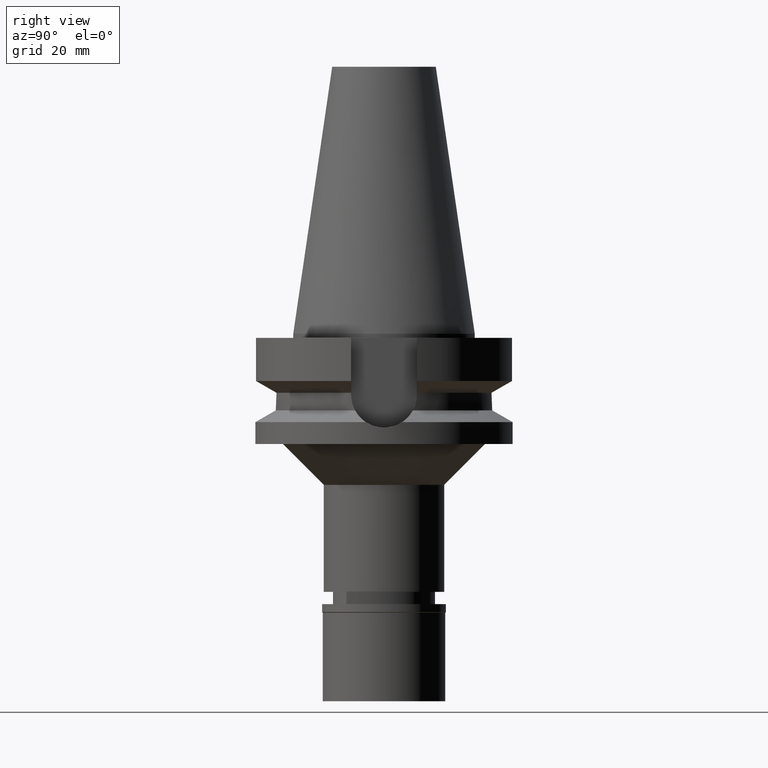
[diagram: clean part render]
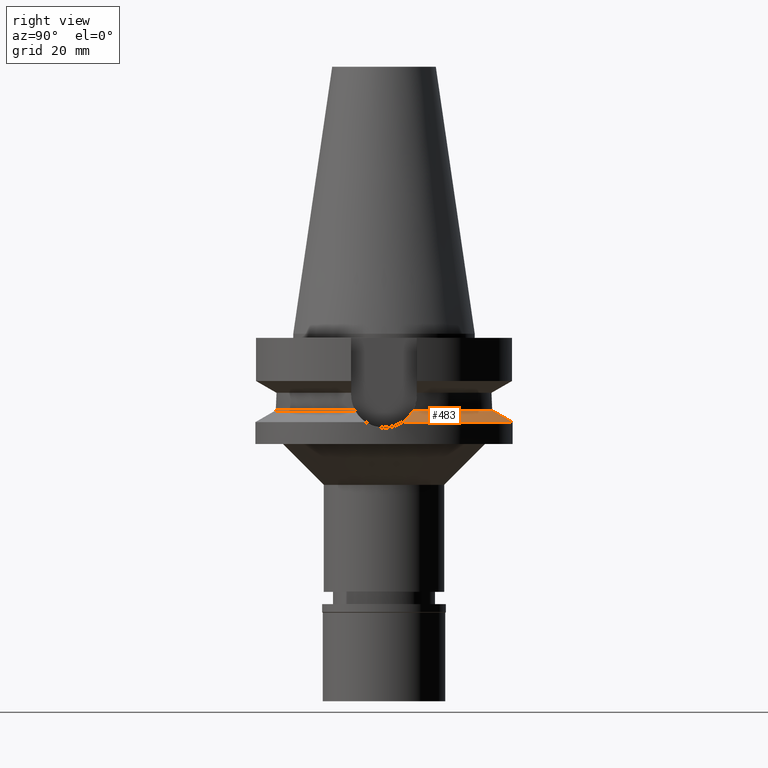
[diagram: same view with one face highlighted and labeled with its STEP entity id]
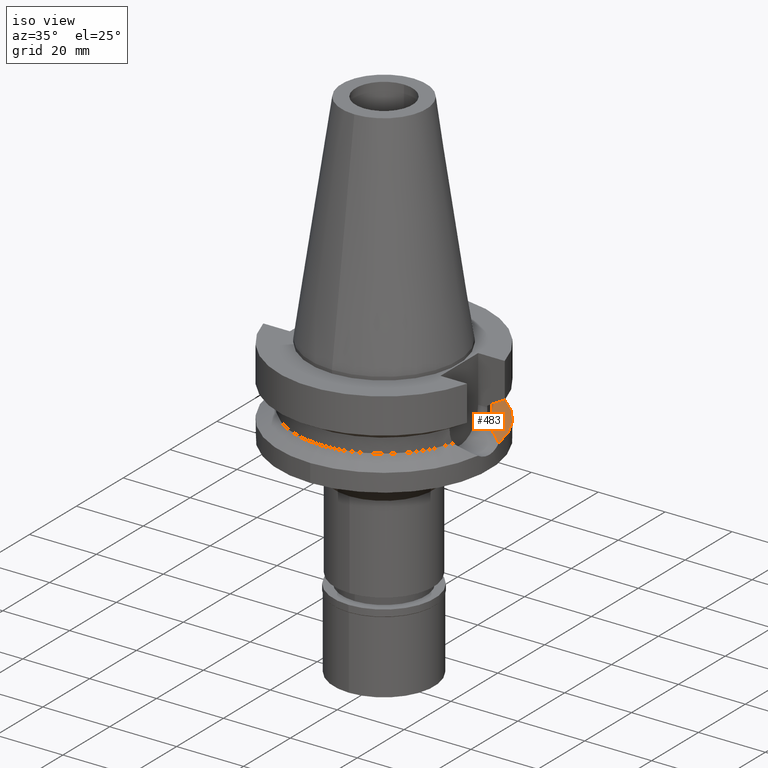
[diagram: same view with one face highlighted and labeled with its STEP entity id]
A machine part, right view. The second image highlights one B-rep face of the part: STEP entity #483.
A second angle (iso view) of the same face is appended — the face is thin or edge-on in the first view.
In plain terms, the highlighted conical surface has half-angle 60 deg.
Its self-contained STEP definition (entity closure, byte-faithful):
#23 = CARTESIAN_POINT ( 'NONE',  ( 27.72863746108189176, 6.369106856178554210, -19.87330729786033245 ) ) ;
#128 = VERTEX_POINT ( 'NONE', #2100 ) ;
#145 = ORIENTED_EDGE ( 'NONE', *, *, #1324, .F. ) ;
#173 = DIRECTION ( 'NONE',  ( 0.0000000000000000000, -1.000000000000000000, 0.0000000000000000000 ) ) ;
#212 = CARTESIAN_POINT ( 'NONE',  ( -27.56832155853851418, 6.431360717030734087, -19.79188796920927373 ) ) ;
#256 = CARTESIAN_POINT ( 'NONE',  ( -27.99705806420217158, 6.260502183034696522, -20.01120139630721795 ) ) ;
#268 = CARTESIAN_POINT ( 'NONE',  ( -27.80261133186566980, 6.340080601829415130, -19.91176336261907664 ) ) ;
#316 = DIRECTION ( 'NONE',  ( 0.0000000000000000000, 0.0000000000000000000, -1.000000000000000000 ) ) ;
#338 = CARTESIAN_POINT ( 'NONE',  ( 27.31939488995484311, 6.525799713995021456, -19.66417160455558388 ) ) ;
#356 = CARTESIAN_POINT ( 'NONE',  ( 27.46991860558352982, 6.469026477808792031, -19.74109902299841579 ) ) ;
#384 = EDGE_CURVE ( 'NONE', #613, #579, #3092, .T. ) ;
#398 = CARTESIAN_POINT ( 'NONE',  ( -25.53175183775000079, 7.097862220092999941, -18.74774300138999905 ) ) ;
#414 = DIRECTION ( 'NONE',  ( 0.0000000000000000000, 0.0000000000000000000, -1.000000000000000000 ) ) ;
#449 = EDGE_LOOP ( 'NONE', ( #2688, #780, #145, #1417, #2636 ) ) ;
#483 = ADVANCED_FACE ( 'NONE', ( #1851 ), #619, .T. ) ;
#510 = CIRCLE ( 'NONE', #1472, 31.50000000000001421 ) ;
#526 = CARTESIAN_POINT ( 'NONE',  ( 27.64221706651611399, 6.403055377995744202, -19.82913948399951920 ) ) ;
#579 = VERTEX_POINT ( 'NONE', #398 ) ;
#613 = VERTEX_POINT ( 'NONE', #2121 ) ;
#619 = CONICAL_SURFACE ( 'NONE', #1780, 29.00000000000000000, 1.047197551196400456 ) ;
#627 = CARTESIAN_POINT ( 'NONE',  ( 28.07127798486517989, 6.232175886262699471, -20.04844231467346560 ) ) ;
#635 = CARTESIAN_POINT ( 'NONE',  ( 0.0000000000000000000, 0.0000000000000000000, -18.74774300138999905 ) ) ;
#647 = DIRECTION ( 'NONE',  ( 0.0000000000000000000, 1.000000000000000000, 0.0000000000000000000 ) ) ;
#651 = CARTESIAN_POINT ( 'NONE',  ( 25.53175183775000079, 7.097862220092999941, -18.74774300138999905 ) ) ;
#685 = CARTESIAN_POINT ( 'NONE',  ( 0.0000000000000000000, 0.0000000000000000000, -21.63449434733000132 ) ) ;
#704 = CARTESIAN_POINT ( 'NONE',  ( -27.46632154445573804, 6.470115555465794088, -19.73968472472500224 ) ) ;
#767 = CARTESIAN_POINT ( 'NONE',  ( -27.36246532912323204, 6.509127274254973727, -19.68652459502293794 ) ) ;
#780 = ORIENTED_EDGE ( 'NONE', *, *, #782, .F. ) ;
#782 = EDGE_CURVE ( 'NONE', #2003, #613, #1656, .T. ) ;
#911 = CIRCLE ( 'NONE', #1211, 31.50000000000000000 ) ;
#990 = CARTESIAN_POINT ( 'NONE',  ( -26.19559971814278398, 6.915381813267166500, -19.08879314223081280 ) ) ;
#1003 = CARTESIAN_POINT ( 'NONE',  ( -29.08123810488426031, 5.770489561318040472, -20.56513768639720396 ) ) ;
#1004 = B_SPLINE_CURVE_WITH_KNOTS ( 'NONE', 3,
 ( #2874, #2173, #1433, #1730, #1176, #2690, #1003, #1670, #1480, #256, #268, #212, #704, #1711, #767, #1237, #990, #2918 ),
 .UNSPECIFIED., .F., .F.,
 ( 4, 2, 2, 2, 2, 1, 1, 2, 2, 4 ),
 ( 0.0000000000000000000, 0.2500000000000068279, 0.3750000000000101030, 0.5000000000000134337, 0.6250000000000167644, 0.6875000000000174305, 0.7187500000000176525, 0.7343750000000175415, 0.7500000000000173195, 1.000000000000000000 ),
 .UNSPECIFIED. ) ;
#1176 = CARTESIAN_POINT ( 'NONE',  ( -29.72311056866762868, 5.432252981373226319, -20.89263474734920578 ) ) ;
#1178 = CARTESIAN_POINT ( 'NONE',  ( 27.17299801931251935, 6.579123492124495876, -19.58930178264291300 ) ) ;
#1211 = AXIS2_PLACEMENT_3D ( 'NONE', #685, #1880, #647 ) ;
#1237 = CARTESIAN_POINT ( 'NONE',  ( -26.79502112116745849, 6.719309164191811234, -19.39602425501171723 ) ) ;
#1312 = DIRECTION ( 'NONE',  ( -0.9898094849552905306, 0.1423979757318985240, 0.0000000000000000000 ) ) ;
#1324 = EDGE_CURVE ( 'NONE', #1469, #2003, #911, .T. ) ;
#1391 = CARTESIAN_POINT ( 'NONE',  ( 0.0000000000000000000, 31.50000000000000000, -21.63449434733000132 ) ) ;
#1417 = ORIENTED_EDGE ( 'NONE', *, *, #2759, .F. ) ;
#1433 = CARTESIAN_POINT ( 'NONE',  ( -30.50821301824432652, 4.965966688458536282, -21.29288543945265033 ) ) ;
#1469 = VERTEX_POINT ( 'NONE', #1391 ) ;
#1472 = AXIS2_PLACEMENT_3D ( 'NONE', #2494, #316, #1312 ) ;
#1480 = CARTESIAN_POINT ( 'NONE',  ( -28.37742718935392716, 6.099878924906184885, -20.20566105898982912 ) ) ;
#1585 = DIRECTION ( 'NONE',  ( 0.0000000000000000000, 0.0000000000000000000, 1.000000000000000000 ) ) ;
#1617 = CARTESIAN_POINT ( 'NONE',  ( 0.0000000000000000000, 0.0000000000000000000, -20.19111867435999841 ) ) ;
#1656 = B_SPLINE_CURVE_WITH_KNOTS ( 'NONE', 3,
 ( #2015, #2035, #1728, #2049, #627, #23, #526, #1858, #2255, #2606, #2022, #356, #338, #1178, #2151, #1888, #651 ),
 .UNSPECIFIED., .F., .F.,
 ( 4, 2, 2, 1, 2, 2, 1, 1, 2, 4 ),
 ( 0.0000000000000000000, 0.5000000000000425215, 0.6250000000000537348, 0.6562500000000562883, 0.6640625000000560663, 0.6679687500000559552, 0.6718750000000558442, 0.6875000000000540679, 0.7500000000000424105, 1.000000000000000000 ),
 .UNSPECIFIED. ) ;
#1670 = CARTESIAN_POINT ( 'NONE',  ( -28.61963866762048880, 5.990844859111962073, -20.32941229452001153 ) ) ;
#1711 = CARTESIAN_POINT ( 'NONE',  ( -27.39796854712878371, 6.495867531568975117, -19.70469854487325989 ) ) ;
#1728 = CARTESIAN_POINT ( 'NONE',  ( 29.60890738133662836, 5.537350990091941760, -20.83454982652936138 ) ) ;
#1730 = CARTESIAN_POINT ( 'NONE',  ( -29.92597539203552515, 5.316717710711510669, -20.99608060023409095 ) ) ;
#1780 = AXIS2_PLACEMENT_3D ( 'NONE', #1617, #414, #173 ) ;
#1851 = FACE_OUTER_BOUND ( 'NONE', #449, .T. ) ;
#1858 = CARTESIAN_POINT ( 'NONE',  ( 27.55484634242540309, 6.436636477266865164, -19.78449437237043185 ) ) ;
#1880 = DIRECTION ( 'NONE',  ( 0.0000000000000000000, 0.0000000000000000000, -1.000000000000000000 ) ) ;
#1888 = CARTESIAN_POINT ( 'NONE',  ( 26.07028533475239485, 6.949828589913072285, -19.02441320012582793 ) ) ;
#2003 = VERTEX_POINT ( 'NONE', #2618 ) ;
#2015 = CARTESIAN_POINT ( 'NONE',  ( 31.17899877608999759, 4.485536235554000051, -21.63449434733000132 ) ) ;
#2022 = CARTESIAN_POINT ( 'NONE',  ( 27.50556752605786315, 6.455463664657106193, -19.75931486654425484 ) ) ;
#2035 = CARTESIAN_POINT ( 'NONE',  ( 30.47180407339579133, 5.022062682997870731, -21.27446579524047721 ) ) ;
#2049 = CARTESIAN_POINT ( 'NONE',  ( 28.33565902955650984, 6.118994045650087088, -20.18363086535748252 ) ) ;
#2088 = AXIS2_PLACEMENT_3D ( 'NONE', #635, #1585, #2284 ) ;
#2100 = CARTESIAN_POINT ( 'NONE',  ( -31.17899877608999759, 4.485536235554000051, -21.63449434733000132 ) ) ;
#2121 = CARTESIAN_POINT ( 'NONE',  ( 25.53175183775000079, 7.097862220092999941, -18.74774300138999905 ) ) ;
#2151 = CARTESIAN_POINT ( 'NONE',  ( 26.57767949355614689, 6.789768496531283226, -19.28466665897634869 ) ) ;
#2173 = CARTESIAN_POINT ( 'NONE',  ( -30.86121335038591695, 4.726630074142183169, -21.47271170635015380 ) ) ;
#2255 = CARTESIAN_POINT ( 'NONE',  ( 27.52857810542669625, 6.446688578403697356, -19.77107224767688720 ) ) ;
#2284 = DIRECTION ( 'NONE',  ( 0.0000000000000000000, 1.000000000000000000, 0.0000000000000000000 ) ) ;
#2494 = CARTESIAN_POINT ( 'NONE',  ( 0.0000000000000000000, 0.0000000000000000000, -21.63449434733000132 ) ) ;
#2599 = EDGE_CURVE ( 'NONE', #128, #579, #1004, .T. ) ;
#2606 = CARTESIAN_POINT ( 'NONE',  ( 27.51981188949262247, 6.450034934894219418, -19.76659318916553687 ) ) ;
#2618 = CARTESIAN_POINT ( 'NONE',  ( 31.17899877608999759, 4.485536235554000051, -21.63449434733000132 ) ) ;
#2636 = ORIENTED_EDGE ( 'NONE', *, *, #2599, .T. ) ;
#2688 = ORIENTED_EDGE ( 'NONE', *, *, #384, .F. ) ;
#2690 = CARTESIAN_POINT ( 'NONE',  ( -29.29987634796986740, 5.659552168242428571, -20.67672122862197526 ) ) ;
#2759 = EDGE_CURVE ( 'NONE', #128, #1469, #510, .T. ) ;
#2874 = CARTESIAN_POINT ( 'NONE',  ( -31.17899877608999759, 4.485536235554000051, -21.63449434733000132 ) ) ;
#2918 = CARTESIAN_POINT ( 'NONE',  ( -25.53175183775000079, 7.097862220092999941, -18.74774300138999905 ) ) ;
#3092 = CIRCLE ( 'NONE', #2088, 26.50000000000000000 ) ;